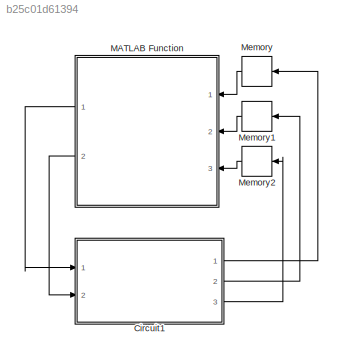
MODEL slx_b25c01d61394
KIND model
CONFIG AbsTol = auto
CONFIG FixedStep = sim_Ts
CONFIG MaxStep = auto
CONFIG MinStep = auto
CONFIG RelTol = 1e-3
CONFIG SampleTimeConstraint = Unconstrained
CONFIG Solver = VariableStepAuto
CONFIG SolverMode = SingleTasking
CONFIG SolverName = VariableStepAuto
CONFIG StartTime = 0.0
CONFIG StopTime = 0.02
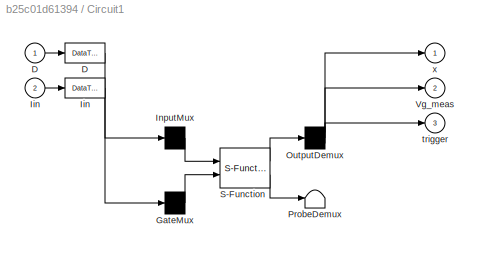
BLOCK [SubSystem] Circuit1
  CopyFcn = plecs('sl', 203);
  DeleteFcn = plecs('sl', 205);
  DestroyFcn = plecs('sl', 207);
  ErrorFcn = plerrorfcn
  InitFcn = plecs('sl', 214);
  LoadFcn = plecs('sl', 200);
  NameChangeFcn = plecs('sl', 210);
  OpenFcn = plecs('sl', 202);
  Ports = [2, 3]
  PostSaveFcn = plecs('sl', 201);
  PreCopyFcn = plecs('sl', 216);
  PreSaveFcn = plecs('sl', 211);
  RequestExecContextInheritance = off
  StartFcn = plecs('sl', 208);
  StopFcn = plecs('sl', 209);
  UndoDeleteFcn = plecs('sl', 206);
  Variant = off
BLOCK [DataTypeConversion] Circuit1/ D 
BLOCK [Mux] Circuit1/ GateMux 
  Inputs = [ 3 ]
  Ports = [1, 1]
BLOCK [DataTypeConversion] Circuit1/ Iin 
BLOCK [Mux] Circuit1/ InputMux 
  Inputs = [ 6 ]
  Ports = [1, 1]
BLOCK [Demux] Circuit1/ OutputDemux 
  Outputs = [ 6 3 1 ]
  Ports = [1, 3]
BLOCK [Terminator] Circuit1/ ProbeDemux 
BLOCK [S-Function] Circuit1/ S-Function 
  EnableBusSupport = off
  FunctionName = plecs
  Ports = [2, 2]
  SFunctionDeploymentMode = off
BLOCK [Inport] Circuit1/D
  IconDisplay = Port number
  PortDimensions = 6
BLOCK [Inport] Circuit1/Iin
  IconDisplay = Port number
  Port = 2
  PortDimensions = 3
BLOCK [Outport] Circuit1/Vg_meas
  IconDisplay = Port number
  Port = 2
  PortDimensions = 3
BLOCK [Outport] Circuit1/trigger
  IconDisplay = Port number
  Port = 3
  PortDimensions = 1
BLOCK [Outport] Circuit1/x
  IconDisplay = Port number
  PortDimensions = 6
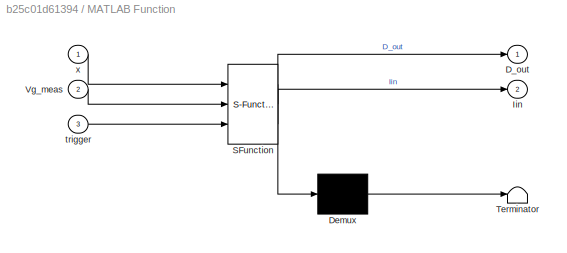
BLOCK [SubSystem] MATLAB Function
  ErrorFcn = Stateflow.Translate.translate
  PermitHierarchicalResolution = ExplicitOnly
  Ports = [3, 2]
  RequestExecContextInheritance = off
  SFBlockType = MATLAB Function
  TreatAsAtomicUnit = on
  Variant = off
BLOCK [Demux] MATLAB Function/ Demux 
  Outputs = 1
  Ports = [1, 1]
BLOCK [S-Function] MATLAB Function/ SFunction 
  EnableBusSupport = on
  FunctionName = sf_sfun
  Parameters = nom
  PortCounts = [3 3]
  Ports = [3, 3]
  SFunctionDeploymentMode = off
  Tag = Stateflow S-Function MMC_Control_PLECS_V2_R2016a 2
BLOCK [Terminator] MATLAB Function/ Terminator 
BLOCK [Outport] MATLAB Function/D_out
  IconDisplay = Port number
BLOCK [Outport] MATLAB Function/Iin
  IconDisplay = Port number
  Port = 2
BLOCK [Inport] MATLAB Function/Vg_meas
  IconDisplay = Port number
  Port = 2
BLOCK [Inport] MATLAB Function/trigger
  IconDisplay = Port number
  Port = 3
BLOCK [Inport] MATLAB Function/x
  IconDisplay = Port number
BLOCK [Memory] Memory
  InheritSampleTime = on
  X0 = [50,50,50,4,4,4];
BLOCK [Memory] Memory1
  InheritSampleTime = on
  X0 = [0,0,0];
BLOCK [Memory] Memory2
  InheritSampleTime = on
LINE Circuit1:1 -> Memory:1
LINE Circuit1:2 -> Memory1:1
LINE Circuit1:3 -> Memory2:1
LINE MATLAB Function:1 -> Circuit1:1
LINE MATLAB Function:2 -> Circuit1:2
LINE Memory1:1 -> MATLAB Function:2
LINE Memory2:1 -> MATLAB Function:3
LINE Memory:1 -> MATLAB Function:1
CHART MATLAB Function states=1 transitions=1
  STATE_LABEL 'eML_blk_kernel()'
  STATE_LABEL 'SCRIPT:\nfunction [D_out, Iin] = MMC_control(x, Vg_meas, trigger,nom)\n\n\n\npersistent D_out_val err_int_val \nif isempty(D_out_val)\n    D_out_val = [0.5; 0.5; 0.5; 0.5; 0.5; 0.5];\n    err_int_val = zeros(5,1);\nend\n\n% Some nominal values \nVpv  = 50; \nIpv = 3;\nIin = [Ipv; Ipv; Ipv];\n\nif trigger    \nVg_peak = 40; \nNstate = 6; \nNout = 5; \n\nphi     = asin(Vg_meas(1)/Vg_peak);\ntstep      = ceil(interp1(nom....<+2264ch>'
